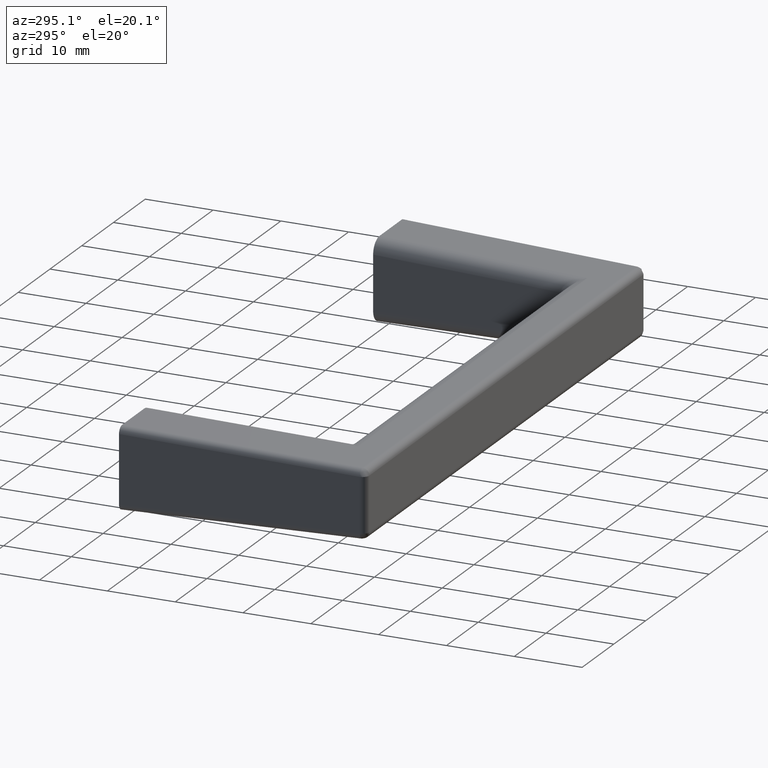
[diagram: clean part render]
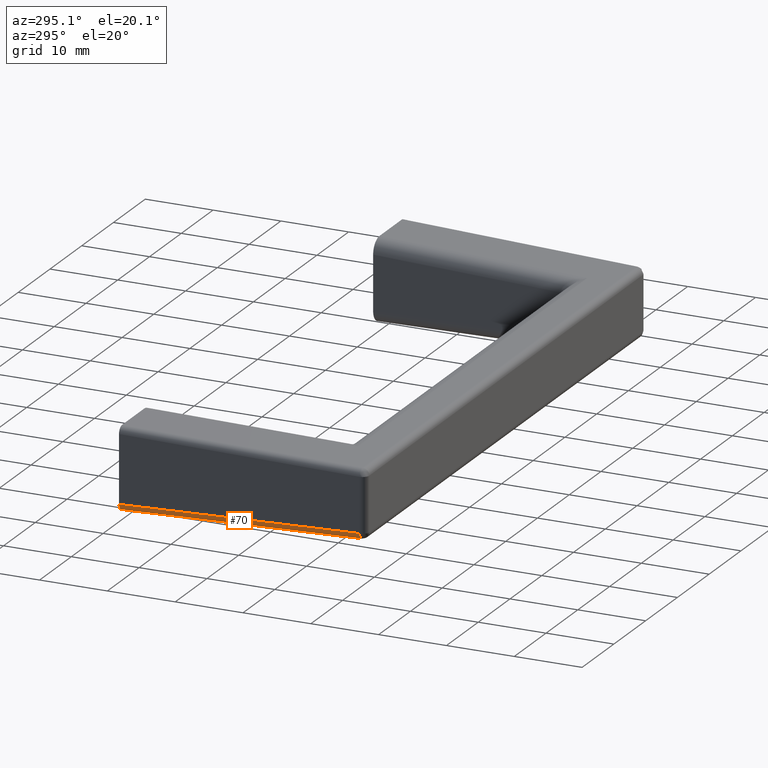
[diagram: same view with one face highlighted and labeled with its STEP entity id]
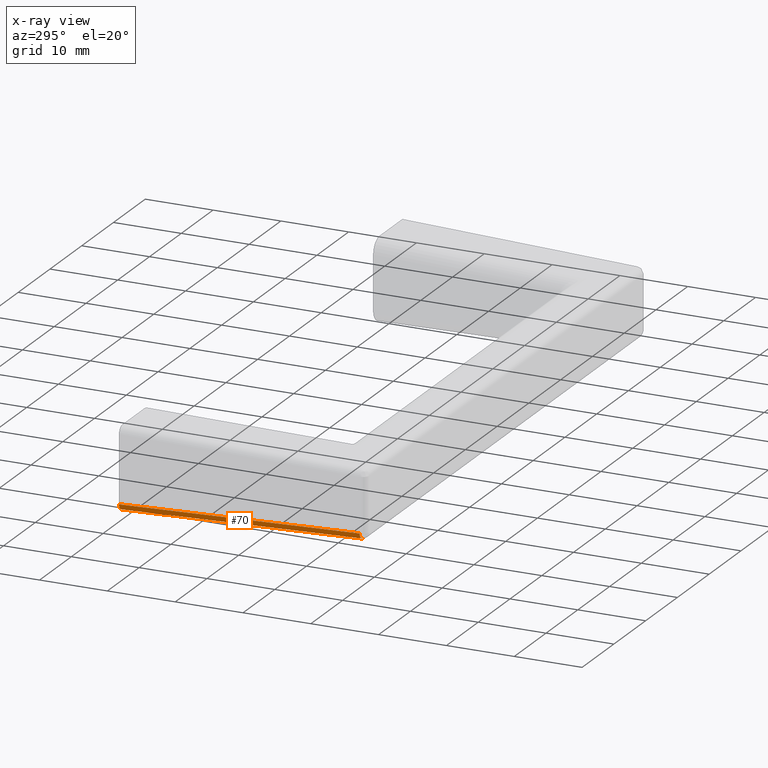
[diagram: x-ray of the same camera — body ghosted, the highlighted face saturated]
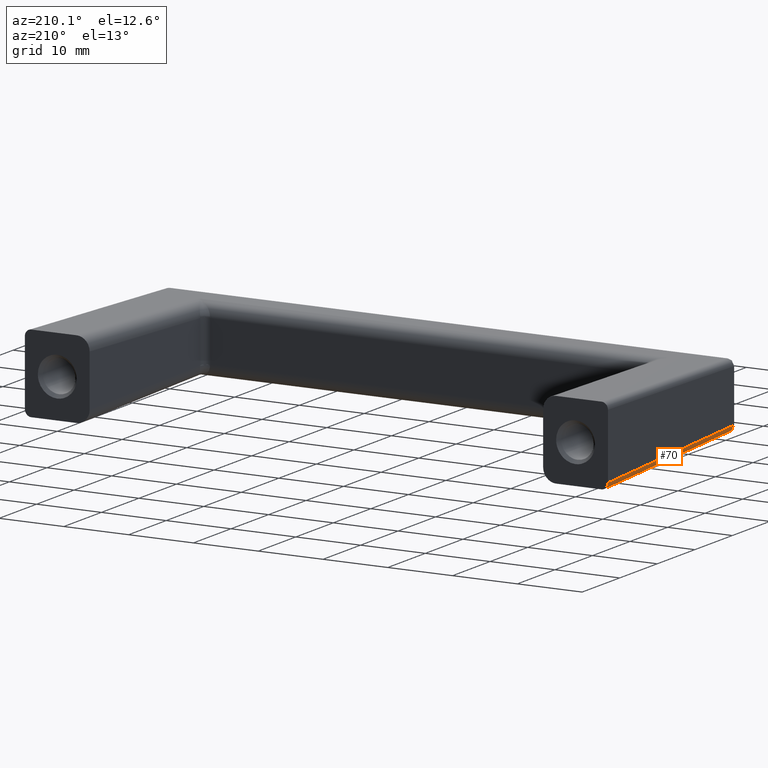
[diagram: same view with one face highlighted and labeled with its STEP entity id]
A machine part, auxiliary view. The second image highlights one B-rep face of the part: STEP entity #70.
The next image is the same camera in x-ray: the body ghosted, the highlighted face saturated — about 0% of this face is hidden behind the body in this view.
A second angle (auxiliary view) of the same face is appended — the face is thin or edge-on in the first view.
In plain terms, the highlighted cylindrical surface (edge-blend (fillet) strip) has radius 1 mm, axis along (0.0278, -0.9992, 0.0278).
Its self-contained STEP definition (entity closure, byte-faithful):
#70=ADVANCED_FACE('',(#390),#389,.T.);
#389=CYLINDRICAL_SURFACE('',#912,1.00000000000E+000);
#390=FACE_OUTER_BOUND('',#913,.T.);
#909=CARTESIAN_POINT('',(-4.30024509144E+001,-3.58978808692E+001,-4.00245091445E+000));
#910=DIRECTION('',(2.77563690827E-002,-9.99229286976E-001,2.77563690827E-002));
#911=DIRECTION('',(-2.69373038796E-002,2.70093019691E-002,9.99272174769E-001));
#912=AXIS2_PLACEMENT_3D('',#909,#910,#911);
#913=EDGE_LOOP('',(#1175,#1176,#1177,#1178));
#1175=ORIENTED_EDGE('',*,*,#1429,.F.);
#1176=ORIENTED_EDGE('',*,*,#1430,.F.);
#1177=ORIENTED_EDGE('',*,*,#1425,.F.);
#1178=ORIENTED_EDGE('',*,*,#1383,.F.);
#1383=EDGE_CURVE('',#1829,#1814,#1836,.T.);
#1425=EDGE_CURVE('',#1814,#2107,#2108,.T.);
#1429=EDGE_CURVE('',#2132,#1829,#2133,.T.);
#1430=EDGE_CURVE('',#2107,#2132,#2139,.T.);
#1814=VERTEX_POINT('',#2764);
#1829=VERTEX_POINT('',#2773);
#1836=LINE('',#2777,#2778);
#2107=VERTEX_POINT('',#3098);
#2108=(BOUNDED_CURVE() B_SPLINE_CURVE(3,(#3099,#3100,#3101,#3102,#3103,#3104,#3105,#3106),.UNSPECIFIED.,.F.,.F.) B_SPLINE_CURVE_WITH_KNOTS((4,1,1,1,1,4),(2.46587745000E-007,2.94382138819E-001,5.64259706794E-001,7.60536858538E-001,1.07941435366E+000,1.57006467628E+000),.UNSPECIFIED.) CURVE() GEOMETRIC_REPRESENTATION_ITEM() RATIONAL_B_SPLINE_CURVE((1.00000000000E+000,1.00000000000E+000,1.00000000000E+000,1.00000000000E+000,1.00000000000E+000,1.00000000000E+000,1.00000000000E+000,1.00000000000E+000)) REPRESENTATION_ITEM('') );
#2132=VERTEX_POINT('',#3131);
#2133=(BOUNDED_CURVE() B_SPLINE_CURVE(3,(#3132,#3133,#3134,#3135,#3136,#3137,#3138,#3139),.UNSPECIFIED.,.F.,.F.) B_SPLINE_CURVE_WITH_KNOTS((4,1,1,1,1,4),(2.47303114000E-007,3.68037627212E-001,6.13413120796E-001,9.07827256662E-001,1.27587283427E+000,1.57029857239E+000),.UNSPECIFIED.) CURVE() GEOMETRIC_REPRESENTATION_ITEM() RATIONAL_B_SPLINE_CURVE((1.00000000000E+000,1.00000000000E+000,1.00000000000E+000,1.00000000000E+000,1.00000000000E+000,1.00000000000E+000,1.00000000000E+000,1.00000000000E+000)) REPRESENTATION_ITEM('') );
#2139=LINE('',#3140,#3141);
#2764=CARTESIAN_POINT('',(-4.40270064704E+001,-3.50277670672E+001,-4.02739204970E+000));
#2773=CARTESIAN_POINT('',(-4.50000000000E+001,0.00000000000E+000,-5.00038557935E+000));
#2777=CARTESIAN_POINT('',(-4.50000000000E+001,0.00000000000E+000,-5.00038557935E+000));
#2778=VECTOR('',#2779,3.50547842460E+001);
#2779=DIRECTION('',(2.77563690827E-002,-9.99229286976E-001,2.77563690827E-002));
#3098=CARTESIAN_POINT('',(-4.30273920497E+001,-3.50277670672E+001,-5.02700647035E+000));
#3099=CARTESIAN_POINT('',(-4.40270064704E+001,-3.50277670672E+001,-4.02739204970E+000));
#3100=CARTESIAN_POINT('',(-4.40269757707E+001,-3.50304909823E+001,-4.12548369031E+000));
#3101=CARTESIAN_POINT('',(-4.39988872532E+001,-3.50349325770E+001,-4.31346961836E+000));
#3102=CARTESIAN_POINT('',(-4.38922716695E+001,-3.50384297079E+001,-4.54598191531E+000));
#3103=CARTESIAN_POINT('',(-4.37304753925E+001,-3.50396928841E+001,-4.75325253392E+000));
#3104=CARTESIAN_POINT('',(-4.34603305390E+001,-3.50379028509E+001,-4.95895619185E+000));
#3105=CARTESIAN_POINT('',(-4.31909470608E+001,-3.50323165378E+001,-5.02723239787E+000));
#3106=CARTESIAN_POINT('',(-4.30273920497E+001,-3.50277670672E+001,-5.02700647035E+000));
#3131=CARTESIAN_POINT('',(-4.40003855793E+001,0.00000000000E+000,-6.00000000000E+000));
#3132=CARTESIAN_POINT('',(-4.40003855793E+001,0.00000000000E+000,-6.00000000000E+000));
#3133=CARTESIAN_POINT('',(-4.41230803941E+001,0.00000000000E+000,-6.00012630951E+000));
#3134=CARTESIAN_POINT('',(-4.43274571729E+001,0.00000000000E+000,-5.96190222152E+000));
#3135=CARTESIAN_POINT('',(-4.45963698147E+001,0.00000000000E+000,-5.81820041492E+000));
#3136=CARTESIAN_POINT('',(-4.48179750117E+001,0.00000000000E+000,-5.60729821031E+000));
#3137=CARTESIAN_POINT('',(-4.49673491376E+001,0.00000000000E+000,-5.31936991726E+000));
#3138=CARTESIAN_POINT('',(-4.50000358952E+001,0.00000000000E+000,-5.09851958557E+000));
#3139=CARTESIAN_POINT('',(-4.50000000000E+001,0.00000000000E+000,-5.00038557935E+000));
#3140=CARTESIAN_POINT('',(-4.30273920497E+001,-3.50277670672E+001,-5.02700647035E+000));
#3141=VECTOR('',#3142,3.50547842460E+001);
#3142=DIRECTION('',(-2.77563690827E-002,9.99229286976E-001,-2.77563690827E-002));